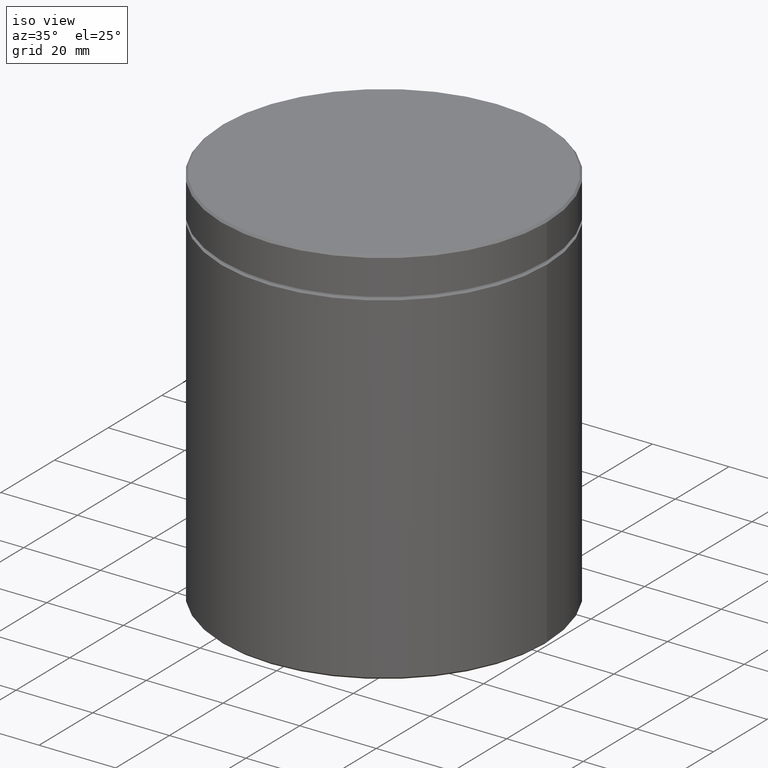
[diagram: clean part render]
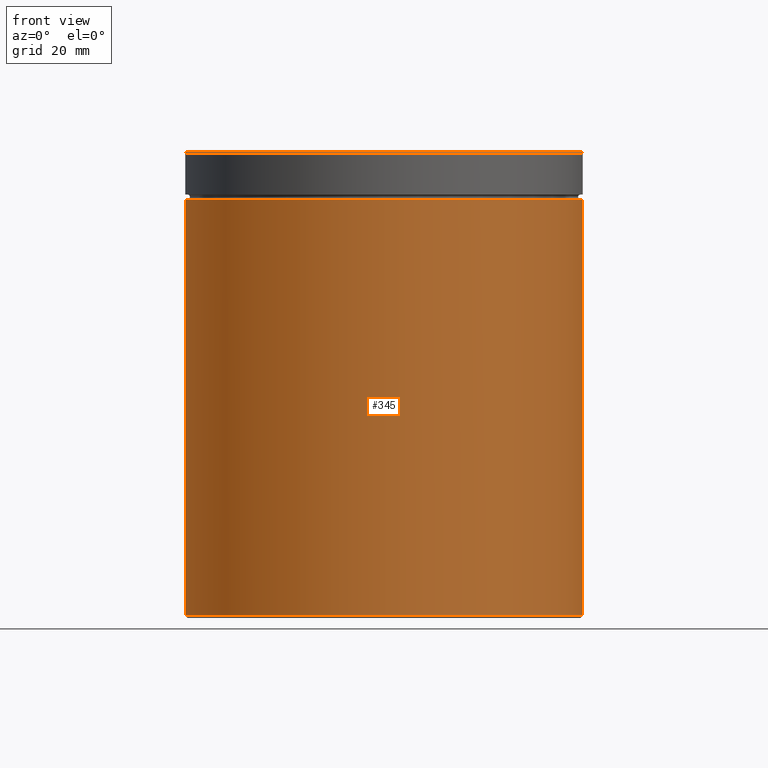
[diagram: tour spotlight — one face highlighted and labeled with its STEP entity id]
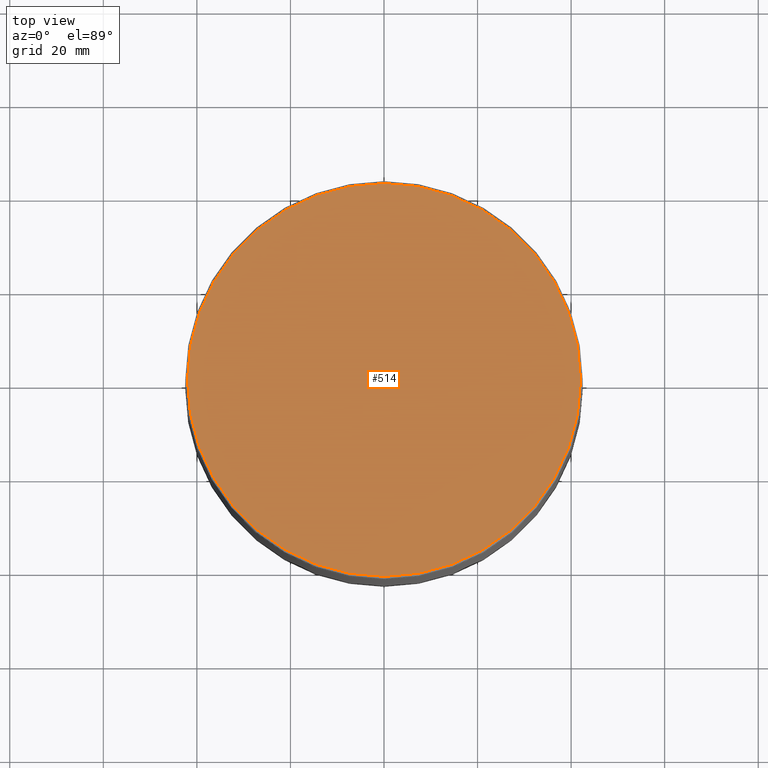
[diagram: tour spotlight — one face highlighted and labeled with its STEP entity id]
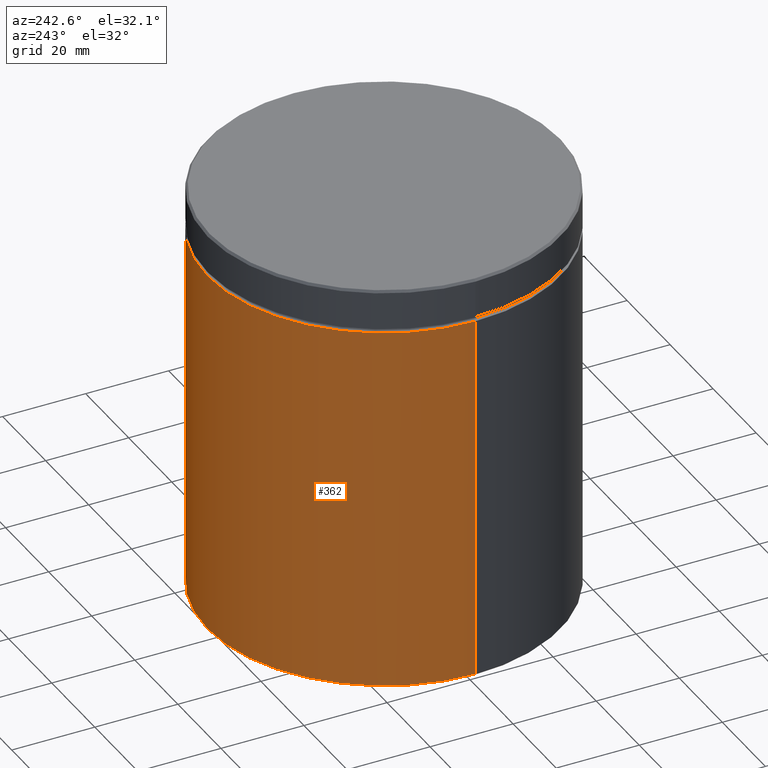
[diagram: tour spotlight — one face highlighted and labeled with its STEP entity id]
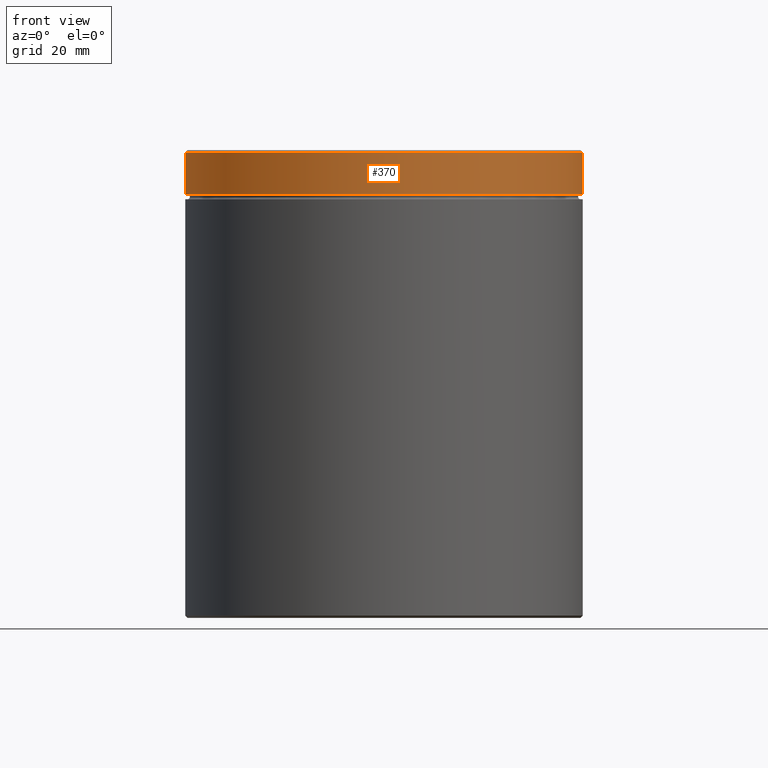
[diagram: tour spotlight — one face highlighted and labeled with its STEP entity id]
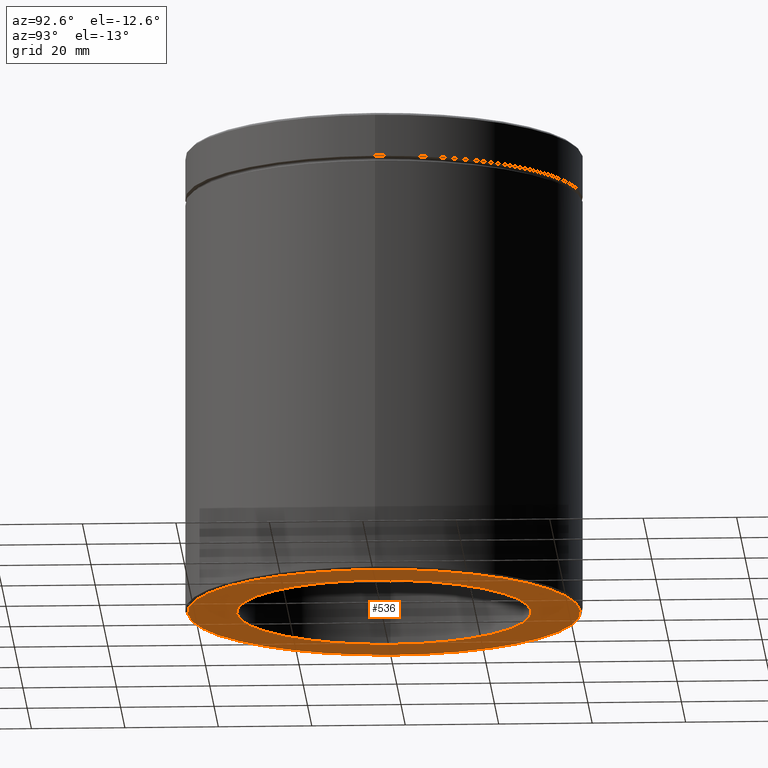
[diagram: tour spotlight — one face highlighted and labeled with its STEP entity id]
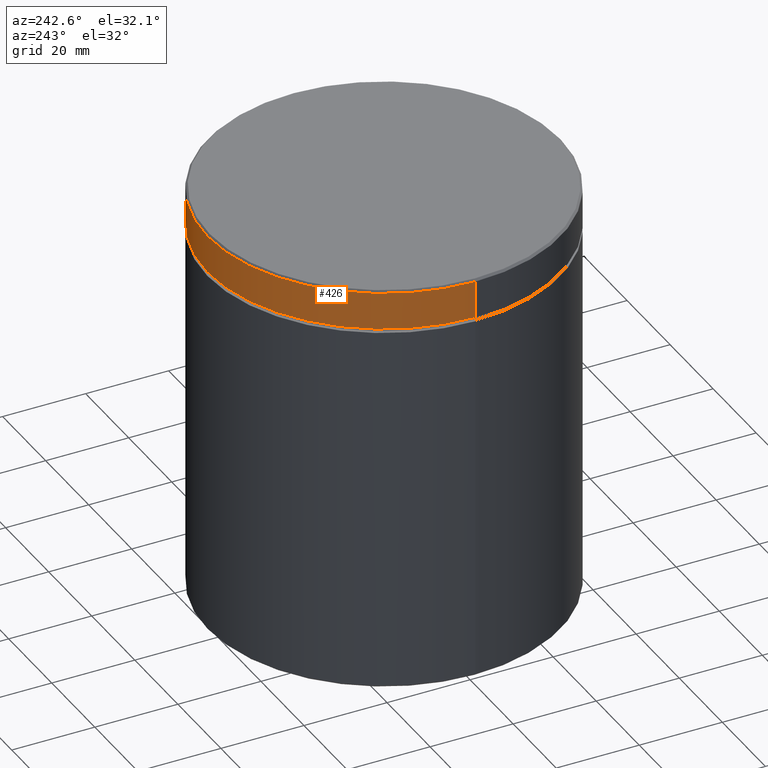
[diagram: tour spotlight — one face highlighted and labeled with its STEP entity id]
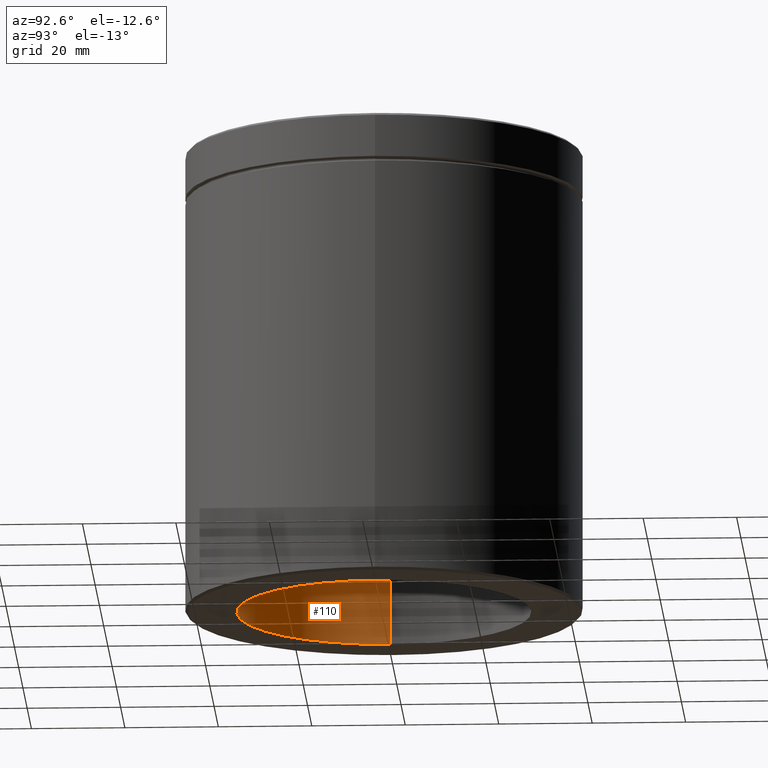
[diagram: tour spotlight — one face highlighted and labeled with its STEP entity id]
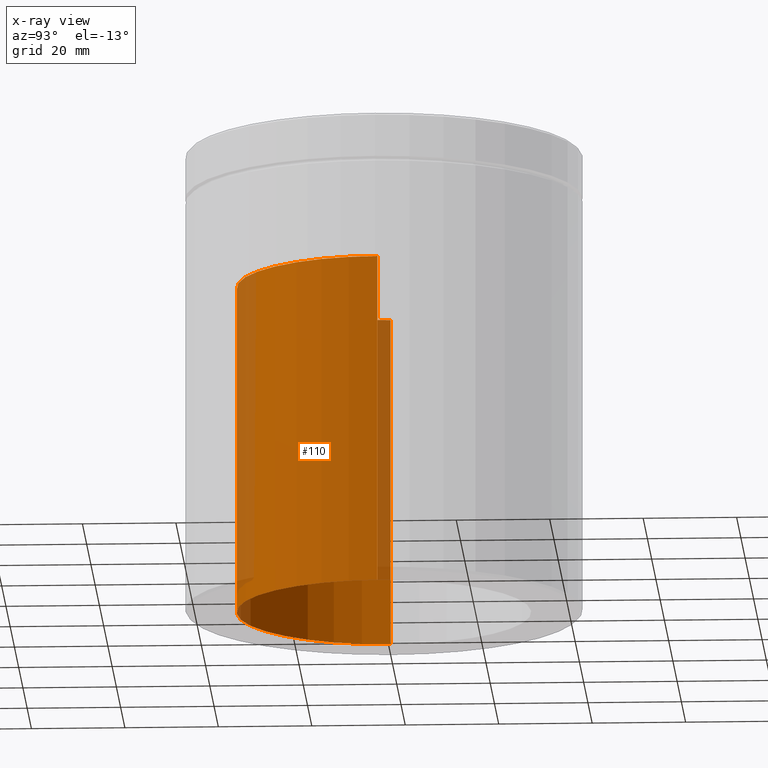
[diagram: x-ray of the same camera — body ghosted, this tour face saturated]
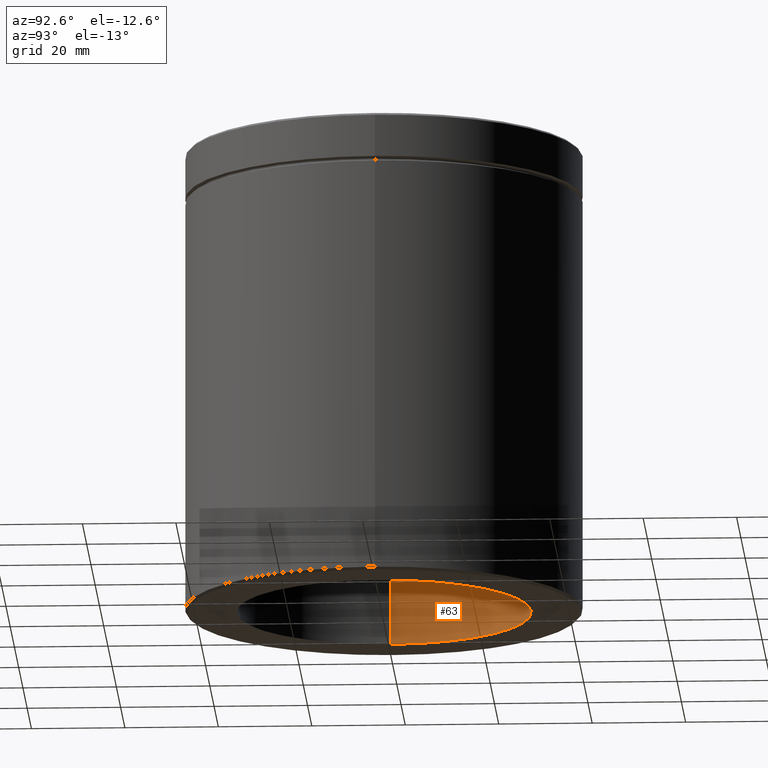
[diagram: tour spotlight — one face highlighted and labeled with its STEP entity id]
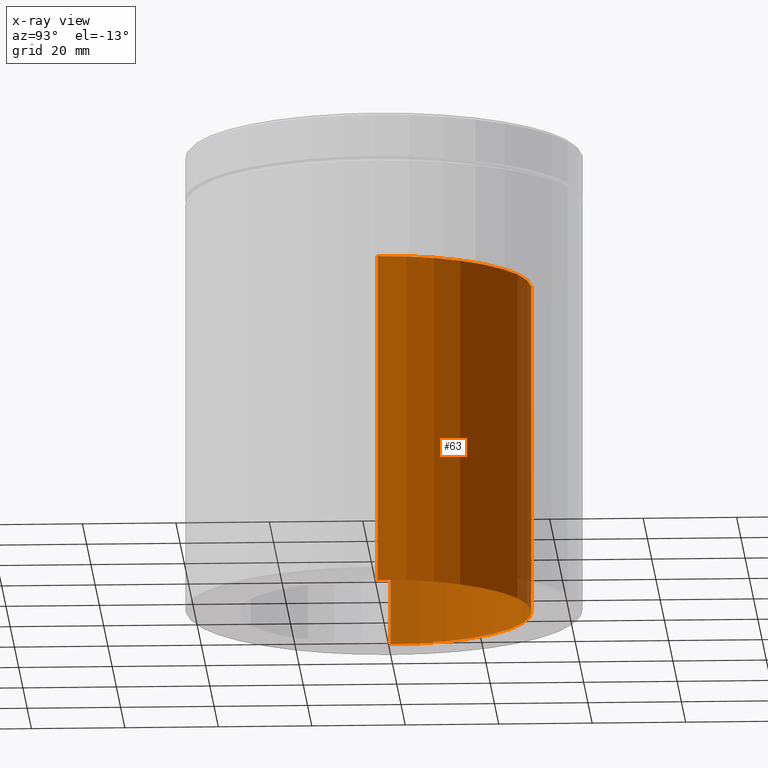
[diagram: x-ray of the same camera — body ghosted, this tour face saturated]
A machine part: a face-by-face anatomy tour. The part has 19 B-rep faces; the first image is the clean iso view, then the 8 largest visible faces are spotlighted one at a time (largest first), each with its STEP entity span.

Face 1 — front view, entity #345. In plain terms, the highlighted cylindrical surface (partial cylindrical patch) has radius 42.5 mm, axis along (-0, -0, 1).
Definition (entity closure, byte-faithful):
#19 = VERTEX_POINT ( 'NONE', #155 ) ;
#21 = DIRECTION ( 'NONE',  ( -0.000000000000000000, -0.000000000000000000, 1.000000000000000000 ) ) ;
#24 = ORIENTED_EDGE ( 'NONE', *, *, #42, .F. ) ;
#33 = AXIS2_PLACEMENT_3D ( 'NONE', #411, #21, #154 ) ;
#42 = EDGE_CURVE ( 'NONE', #532, #283, #319, .T. ) ;
#45 = DIRECTION ( 'NONE',  ( -0.000000000000000000, -0.000000000000000000, 1.000000000000000000 ) ) ;
#97 = EDGE_CURVE ( 'NONE', #19, #466, #497, .T. ) ;
#102 = CYLINDRICAL_SURFACE ( 'NONE', #33, 42.50000000000000000 ) ;
#115 = AXIS2_PLACEMENT_3D ( 'NONE', #558, #132, #424 ) ;
#131 = ORIENTED_EDGE ( 'NONE', *, *, #97, .T. ) ;
#132 = DIRECTION ( 'NONE',  ( -0.000000000000000000, -0.000000000000000000, 1.000000000000000000 ) ) ;
#141 = CARTESIAN_POINT ( 'NONE',  ( -42.50000000000000000, 5.204748896376250896E-15, 0.000000000000000000 ) ) ;
#148 = EDGE_CURVE ( 'NONE', #466, #283, #432, .T. ) ;
#154 = DIRECTION ( 'NONE',  ( 1.000000000000000000, 0.000000000000000000, 0.000000000000000000 ) ) ;
#155 = CARTESIAN_POINT ( 'NONE',  ( -42.50000000000000000, 5.204748896376250896E-15, -99.49999999999997158 ) ) ;
#213 = CARTESIAN_POINT ( 'NONE',  ( 42.50000000000000000, 0.000000000000000000, 0.000000000000000000 ) ) ;
#221 = DIRECTION ( 'NONE',  ( -0.000000000000000000, -0.000000000000000000, 1.000000000000000000 ) ) ;
#234 = CARTESIAN_POINT ( 'NONE',  ( -42.50000000000000000, 5.204748896376250896E-15, -10.50000000000000000 ) ) ;
#241 = FACE_OUTER_BOUND ( 'NONE', #551, .T. ) ;
#259 = DIRECTION ( 'NONE',  ( 1.000000000000000000, 0.000000000000000000, 0.000000000000000000 ) ) ;
#283 = VERTEX_POINT ( 'NONE', #363 ) ;
#294 = VECTOR ( 'NONE', #446, 1000.000000000000000 ) ;
#311 = EDGE_CURVE ( 'NONE', #19, #532, #534, .T. ) ;
#319 = CIRCLE ( 'NONE', #361, 42.50000000000000000 ) ;
#342 = VECTOR ( 'NONE', #45, 1000.000000000000000 ) ;
#345 = ADVANCED_FACE ( 'NONE', ( #241 ), #102, .T. ) ;
#361 = AXIS2_PLACEMENT_3D ( 'NONE', #472, #221, #259 ) ;
#363 = CARTESIAN_POINT ( 'NONE',  ( 42.50000000000000000, 0.000000000000000000, -10.50000000000000000 ) ) ;
#411 = CARTESIAN_POINT ( 'NONE',  ( 0.000000000000000000, 0.000000000000000000, 0.000000000000000000 ) ) ;
#417 = ORIENTED_EDGE ( 'NONE', *, *, #311, .F. ) ;
#424 = DIRECTION ( 'NONE',  ( -1.000000000000000000, 0.000000000000000000, 0.000000000000000000 ) ) ;
#432 = LINE ( 'NONE', #213, #342 ) ;
#446 = DIRECTION ( 'NONE',  ( -0.000000000000000000, -0.000000000000000000, 1.000000000000000000 ) ) ;
#464 = ORIENTED_EDGE ( 'NONE', *, *, #148, .T. ) ;
#466 = VERTEX_POINT ( 'NONE', #523 ) ;
#472 = CARTESIAN_POINT ( 'NONE',  ( 0.000000000000000000, 0.000000000000000000, -10.50000000000000000 ) ) ;
#497 = CIRCLE ( 'NONE', #115, 42.50000000000000000 ) ;
#523 = CARTESIAN_POINT ( 'NONE',  ( 42.50000000000000000, 0.000000000000000000, -99.49999999999997158 ) ) ;
#532 = VERTEX_POINT ( 'NONE', #234 ) ;
#534 = LINE ( 'NONE', #141, #294 ) ;
#551 = EDGE_LOOP ( 'NONE', ( #417, #131, #464, #24 ) ) ;
#558 = CARTESIAN_POINT ( 'NONE',  ( 0.000000000000000000, 0.000000000000000000, -99.49999999999997158 ) ) ;

Face 2 — top view, entity #514. In plain terms, the highlighted planar face has unit normal (0, -0, 1).
Definition (entity closure, byte-faithful):
#56 = DIRECTION ( 'NONE',  ( 0.000000000000000000, -0.000000000000000000, 1.000000000000000000 ) ) ;
#70 = AXIS2_PLACEMENT_3D ( 'NONE', #114, #346, #75 ) ;
#75 = DIRECTION ( 'NONE',  ( 1.000000000000000000, 0.000000000000000000, 0.000000000000000000 ) ) ;
#90 = DIRECTION ( 'NONE',  ( 1.000000000000000000, 0.000000000000000000, 0.000000000000000000 ) ) ;
#103 = CIRCLE ( 'NONE', #70, 41.99999999999999289 ) ;
#109 = DIRECTION ( 'NONE',  ( 1.000000000000000000, 0.000000000000000000, 0.000000000000000000 ) ) ;
#114 = CARTESIAN_POINT ( 'NONE',  ( 0.000000000000000000, 0.000000000000000000, 0.000000000000000000 ) ) ;
#116 = VERTEX_POINT ( 'NONE', #391 ) ;
#276 = ORIENTED_EDGE ( 'NONE', *, *, #359, .T. ) ;
#281 = FACE_OUTER_BOUND ( 'NONE', #488, .T. ) ;
#315 = PLANE ( 'NONE',  #343 ) ;
#316 = VERTEX_POINT ( 'NONE', #326 ) ;
#326 = CARTESIAN_POINT ( 'NONE',  ( -41.99999999999999289, 0.000000000000000000, 0.000000000000000000 ) ) ;
#333 = CARTESIAN_POINT ( 'NONE',  ( 0.000000000000000000, 0.000000000000000000, 0.000000000000000000 ) ) ;
#343 = AXIS2_PLACEMENT_3D ( 'NONE', #484, #56, #90 ) ;
#346 = DIRECTION ( 'NONE',  ( -0.000000000000000000, -0.000000000000000000, 1.000000000000000000 ) ) ;
#347 = ORIENTED_EDGE ( 'NONE', *, *, #503, .T. ) ;
#359 = EDGE_CURVE ( 'NONE', #116, #316, #527, .T. ) ;
#391 = CARTESIAN_POINT ( 'NONE',  ( 41.99999999999999289, 5.174132726397566320E-15, 0.000000000000000000 ) ) ;
#412 = AXIS2_PLACEMENT_3D ( 'NONE', #333, #501, #109 ) ;
#484 = CARTESIAN_POINT ( 'NONE',  ( 0.000000000000000000, 0.000000000000000000, 0.000000000000000000 ) ) ;
#488 = EDGE_LOOP ( 'NONE', ( #347, #276 ) ) ;
#501 = DIRECTION ( 'NONE',  ( -0.000000000000000000, -0.000000000000000000, 1.000000000000000000 ) ) ;
#503 = EDGE_CURVE ( 'NONE', #316, #116, #103, .T. ) ;
#514 = ADVANCED_FACE ( 'NONE', ( #281 ), #315, .T. ) ;
#527 = CIRCLE ( 'NONE', #412, 41.99999999999999289 ) ;

Face 3 — auxiliary view, entity #362. In plain terms, the highlighted cylindrical surface (partial cylindrical patch) has radius 42.5 mm, axis along (-0, -0, 1).
Definition (entity closure, byte-faithful):
#2 = AXIS2_PLACEMENT_3D ( 'NONE', #247, #305, #340 ) ;
#19 = VERTEX_POINT ( 'NONE', #155 ) ;
#38 = DIRECTION ( 'NONE',  ( 1.000000000000000000, 0.000000000000000000, 0.000000000000000000 ) ) ;
#40 = ORIENTED_EDGE ( 'NONE', *, *, #83, .F. ) ;
#45 = DIRECTION ( 'NONE',  ( -0.000000000000000000, -0.000000000000000000, 1.000000000000000000 ) ) ;
#62 = ORIENTED_EDGE ( 'NONE', *, *, #148, .F. ) ;
#67 = CYLINDRICAL_SURFACE ( 'NONE', #2, 42.50000000000000000 ) ;
#83 = EDGE_CURVE ( 'NONE', #283, #532, #352, .T. ) ;
#141 = CARTESIAN_POINT ( 'NONE',  ( -42.50000000000000000, 5.204748896376250896E-15, 0.000000000000000000 ) ) ;
#148 = EDGE_CURVE ( 'NONE', #466, #283, #432, .T. ) ;
#155 = CARTESIAN_POINT ( 'NONE',  ( -42.50000000000000000, 5.204748896376250896E-15, -99.49999999999997158 ) ) ;
#213 = CARTESIAN_POINT ( 'NONE',  ( 42.50000000000000000, 0.000000000000000000, 0.000000000000000000 ) ) ;
#234 = CARTESIAN_POINT ( 'NONE',  ( -42.50000000000000000, 5.204748896376250896E-15, -10.50000000000000000 ) ) ;
#239 = ORIENTED_EDGE ( 'NONE', *, *, #311, .T. ) ;
#247 = CARTESIAN_POINT ( 'NONE',  ( 0.000000000000000000, 0.000000000000000000, 0.000000000000000000 ) ) ;
#265 = DIRECTION ( 'NONE',  ( -0.000000000000000000, -0.000000000000000000, 1.000000000000000000 ) ) ;
#283 = VERTEX_POINT ( 'NONE', #363 ) ;
#292 = FACE_OUTER_BOUND ( 'NONE', #302, .T. ) ;
#294 = VECTOR ( 'NONE', #446, 1000.000000000000000 ) ;
#302 = EDGE_LOOP ( 'NONE', ( #327, #239, #40, #62 ) ) ;
#305 = DIRECTION ( 'NONE',  ( -0.000000000000000000, -0.000000000000000000, 1.000000000000000000 ) ) ;
#311 = EDGE_CURVE ( 'NONE', #19, #532, #534, .T. ) ;
#327 = ORIENTED_EDGE ( 'NONE', *, *, #375, .T. ) ;
#339 = DIRECTION ( 'NONE',  ( -1.000000000000000000, 0.000000000000000000, 0.000000000000000000 ) ) ;
#340 = DIRECTION ( 'NONE',  ( 1.000000000000000000, 0.000000000000000000, 0.000000000000000000 ) ) ;
#342 = VECTOR ( 'NONE', #45, 1000.000000000000000 ) ;
#352 = CIRCLE ( 'NONE', #515, 42.50000000000000000 ) ;
#357 = AXIS2_PLACEMENT_3D ( 'NONE', #554, #390, #339 ) ;
#362 = ADVANCED_FACE ( 'NONE', ( #292 ), #67, .T. ) ;
#363 = CARTESIAN_POINT ( 'NONE',  ( 42.50000000000000000, 0.000000000000000000, -10.50000000000000000 ) ) ;
#375 = EDGE_CURVE ( 'NONE', #466, #19, #492, .T. ) ;
#383 = CARTESIAN_POINT ( 'NONE',  ( 0.000000000000000000, 0.000000000000000000, -10.50000000000000000 ) ) ;
#390 = DIRECTION ( 'NONE',  ( -0.000000000000000000, -0.000000000000000000, 1.000000000000000000 ) ) ;
#432 = LINE ( 'NONE', #213, #342 ) ;
#446 = DIRECTION ( 'NONE',  ( -0.000000000000000000, -0.000000000000000000, 1.000000000000000000 ) ) ;
#466 = VERTEX_POINT ( 'NONE', #523 ) ;
#492 = CIRCLE ( 'NONE', #357, 42.50000000000000000 ) ;
#515 = AXIS2_PLACEMENT_3D ( 'NONE', #383, #265, #38 ) ;
#523 = CARTESIAN_POINT ( 'NONE',  ( 42.50000000000000000, 0.000000000000000000, -99.49999999999997158 ) ) ;
#532 = VERTEX_POINT ( 'NONE', #234 ) ;
#534 = LINE ( 'NONE', #141, #294 ) ;
#554 = CARTESIAN_POINT ( 'NONE',  ( 0.000000000000000000, 0.000000000000000000, -99.49999999999997158 ) ) ;

Face 4 — front view, entity #370. In plain terms, the highlighted cylindrical surface (partial cylindrical patch) has radius 42.5 mm, axis along (-0, -0, 1).
Definition (entity closure, byte-faithful):
#13 = EDGE_CURVE ( 'NONE', #505, #20, #306, .T. ) ;
#20 = VERTEX_POINT ( 'NONE', #562 ) ;
#43 = VECTOR ( 'NONE', #406, 1000.000000000000000 ) ;
#47 = CARTESIAN_POINT ( 'NONE',  ( 0.000000000000000000, 0.000000000000000000, -0.5000000000000004441 ) ) ;
#51 = DIRECTION ( 'NONE',  ( -0.000000000000000000, -0.000000000000000000, 1.000000000000000000 ) ) ;
#65 = CARTESIAN_POINT ( 'NONE',  ( 0.000000000000000000, 0.000000000000000000, -9.500000000000000000 ) ) ;
#101 = DIRECTION ( 'NONE',  ( 1.000000000000000000, 0.000000000000000000, 0.000000000000000000 ) ) ;
#128 = AXIS2_PLACEMENT_3D ( 'NONE', #47, #451, #101 ) ;
#142 = LINE ( 'NONE', #438, #184 ) ;
#150 = EDGE_LOOP ( 'NONE', ( #548, #331, #452, #295 ) ) ;
#156 = EDGE_CURVE ( 'NONE', #20, #368, #310, .T. ) ;
#165 = DIRECTION ( 'NONE',  ( -0.000000000000000000, -0.000000000000000000, 1.000000000000000000 ) ) ;
#166 = CARTESIAN_POINT ( 'NONE',  ( -42.50000000000000000, 5.204748896376250896E-15, -9.500000000000000000 ) ) ;
#172 = CARTESIAN_POINT ( 'NONE',  ( -42.50000000000000000, 5.204748896376250896E-15, -0.5000000000000004441 ) ) ;
#178 = EDGE_CURVE ( 'NONE', #368, #490, #378, .T. ) ;
#184 = VECTOR ( 'NONE', #220, 1000.000000000000000 ) ;
#208 = CARTESIAN_POINT ( 'NONE',  ( 42.50000000000000000, 0.000000000000000000, -0.5000000000000004441 ) ) ;
#211 = CYLINDRICAL_SURFACE ( 'NONE', #507, 42.50000000000000000 ) ;
#220 = DIRECTION ( 'NONE',  ( -0.000000000000000000, -0.000000000000000000, 1.000000000000000000 ) ) ;
#295 = ORIENTED_EDGE ( 'NONE', *, *, #178, .T. ) ;
#306 = CIRCLE ( 'NONE', #410, 42.50000000000000000 ) ;
#310 = LINE ( 'NONE', #482, #43 ) ;
#331 = ORIENTED_EDGE ( 'NONE', *, *, #13, .T. ) ;
#368 = VERTEX_POINT ( 'NONE', #208 ) ;
#370 = ADVANCED_FACE ( 'NONE', ( #557 ), #211, .T. ) ;
#378 = CIRCLE ( 'NONE', #128, 42.50000000000000000 ) ;
#406 = DIRECTION ( 'NONE',  ( -0.000000000000000000, -0.000000000000000000, 1.000000000000000000 ) ) ;
#410 = AXIS2_PLACEMENT_3D ( 'NONE', #65, #165, #549 ) ;
#438 = CARTESIAN_POINT ( 'NONE',  ( -42.50000000000000000, 5.204748896376250896E-15, 0.000000000000000000 ) ) ;
#451 = DIRECTION ( 'NONE',  ( 0.000000000000000000, 0.000000000000000000, -1.000000000000000000 ) ) ;
#452 = ORIENTED_EDGE ( 'NONE', *, *, #156, .T. ) ;
#458 = DIRECTION ( 'NONE',  ( 1.000000000000000000, 0.000000000000000000, 0.000000000000000000 ) ) ;
#475 = CARTESIAN_POINT ( 'NONE',  ( 0.000000000000000000, 0.000000000000000000, 0.000000000000000000 ) ) ;
#482 = CARTESIAN_POINT ( 'NONE',  ( 42.50000000000000000, 0.000000000000000000, 0.000000000000000000 ) ) ;
#490 = VERTEX_POINT ( 'NONE', #172 ) ;
#505 = VERTEX_POINT ( 'NONE', #166 ) ;
#507 = AXIS2_PLACEMENT_3D ( 'NONE', #475, #51, #458 ) ;
#548 = ORIENTED_EDGE ( 'NONE', *, *, #550, .F. ) ;
#549 = DIRECTION ( 'NONE',  ( 1.000000000000000000, 0.000000000000000000, 0.000000000000000000 ) ) ;
#550 = EDGE_CURVE ( 'NONE', #505, #490, #142, .T. ) ;
#557 = FACE_OUTER_BOUND ( 'NONE', #150, .T. ) ;
#562 = CARTESIAN_POINT ( 'NONE',  ( 42.50000000000000000, 0.000000000000000000, -9.500000000000000000 ) ) ;

Face 5 — auxiliary view, entity #536. In plain terms, the highlighted planar face has unit normal (0, 0, -1).
Definition (entity closure, byte-faithful):
#6 = ORIENTED_EDGE ( 'NONE', *, *, #559, .T. ) ;
#7 = DIRECTION ( 'NONE',  ( 0.000000000000000000, 0.000000000000000000, -1.000000000000000000 ) ) ;
#11 = FACE_BOUND ( 'NONE', #415, .T. ) ;
#15 = AXIS2_PLACEMENT_3D ( 'NONE', #393, #187, #226 ) ;
#41 = CARTESIAN_POINT ( 'NONE',  ( -31.50000000000000000, 0.000000000000000000, -100.0000000000000000 ) ) ;
#50 = AXIS2_PLACEMENT_3D ( 'NONE', #487, #99, #138 ) ;
#64 = DIRECTION ( 'NONE',  ( -1.000000000000000000, 0.000000000000000000, 0.000000000000000000 ) ) ;
#69 = VERTEX_POINT ( 'NONE', #41 ) ;
#81 = ORIENTED_EDGE ( 'NONE', *, *, #280, .T. ) ;
#99 = DIRECTION ( 'NONE',  ( 0.000000000000000000, 0.000000000000000000, -1.000000000000000000 ) ) ;
#125 = EDGE_CURVE ( 'NONE', #205, #69, #386, .T. ) ;
#133 = CARTESIAN_POINT ( 'NONE',  ( 0.000000000000000000, 42.50000000000000000, -100.0000000000000000 ) ) ;
#134 = CARTESIAN_POINT ( 'NONE',  ( -41.99999999999996447, 5.174132726397564743E-15, -100.0000000000000000 ) ) ;
#138 = DIRECTION ( 'NONE',  ( -1.000000000000000000, 0.000000000000000000, 0.000000000000000000 ) ) ;
#187 = DIRECTION ( 'NONE',  ( 0.000000000000000000, 0.000000000000000000, -1.000000000000000000 ) ) ;
#196 = VERTEX_POINT ( 'NONE', #134 ) ;
#198 = AXIS2_PLACEMENT_3D ( 'NONE', #459, #380, #64 ) ;
#205 = VERTEX_POINT ( 'NONE', #441 ) ;
#224 = CIRCLE ( 'NONE', #50, 41.99999999999996447 ) ;
#226 = DIRECTION ( 'NONE',  ( -1.000000000000000000, 0.000000000000000000, 0.000000000000000000 ) ) ;
#255 = CIRCLE ( 'NONE', #15, 41.99999999999996447 ) ;
#280 = EDGE_CURVE ( 'NONE', #196, #504, #224, .T. ) ;
#307 = DIRECTION ( 'NONE',  ( 0.000000000000000000, 0.000000000000000000, -1.000000000000000000 ) ) ;
#341 = EDGE_CURVE ( 'NONE', #69, #205, #539, .T. ) ;
#348 = CARTESIAN_POINT ( 'NONE',  ( 0.000000000000000000, 0.000000000000000000, -100.0000000000000000 ) ) ;
#366 = PLANE ( 'NONE',  #463 ) ;
#380 = DIRECTION ( 'NONE',  ( 0.000000000000000000, 0.000000000000000000, -1.000000000000000000 ) ) ;
#386 = CIRCLE ( 'NONE', #422, 31.50000000000000000 ) ;
#393 = CARTESIAN_POINT ( 'NONE',  ( 0.000000000000000000, 0.000000000000000000, -100.0000000000000000 ) ) ;
#402 = FACE_OUTER_BOUND ( 'NONE', #547, .T. ) ;
#415 = EDGE_LOOP ( 'NONE', ( #425, #500 ) ) ;
#422 = AXIS2_PLACEMENT_3D ( 'NONE', #348, #307, #477 ) ;
#425 = ORIENTED_EDGE ( 'NONE', *, *, #341, .F. ) ;
#441 = CARTESIAN_POINT ( 'NONE',  ( 31.50000000000000000, 3.857637417314162689E-15, -100.0000000000000000 ) ) ;
#459 = CARTESIAN_POINT ( 'NONE',  ( 0.000000000000000000, 0.000000000000000000, -100.0000000000000000 ) ) ;
#463 = AXIS2_PLACEMENT_3D ( 'NONE', #133, #7, #540 ) ;
#477 = DIRECTION ( 'NONE',  ( -1.000000000000000000, 0.000000000000000000, 0.000000000000000000 ) ) ;
#487 = CARTESIAN_POINT ( 'NONE',  ( 0.000000000000000000, 0.000000000000000000, -100.0000000000000000 ) ) ;
#500 = ORIENTED_EDGE ( 'NONE', *, *, #125, .F. ) ;
#504 = VERTEX_POINT ( 'NONE', #556 ) ;
#536 = ADVANCED_FACE ( 'NONE', ( #402, #11 ), #366, .T. ) ;
#539 = CIRCLE ( 'NONE', #198, 31.50000000000000000 ) ;
#540 = DIRECTION ( 'NONE',  ( -1.000000000000000000, 0.000000000000000000, -0.000000000000000000 ) ) ;
#547 = EDGE_LOOP ( 'NONE', ( #6, #81 ) ) ;
#556 = CARTESIAN_POINT ( 'NONE',  ( 41.99999999999996447, 0.000000000000000000, -100.0000000000000000 ) ) ;
#559 = EDGE_CURVE ( 'NONE', #504, #196, #255, .T. ) ;

Face 6 — auxiliary view, entity #426. In plain terms, the highlighted cylindrical surface (partial cylindrical patch) has radius 42.5 mm, axis along (-0, -0, 1).
Definition (entity closure, byte-faithful):
#10 = EDGE_CURVE ( 'NONE', #490, #368, #404, .T. ) ;
#20 = VERTEX_POINT ( 'NONE', #562 ) ;
#25 = ORIENTED_EDGE ( 'NONE', *, *, #10, .T. ) ;
#30 = FACE_OUTER_BOUND ( 'NONE', #299, .T. ) ;
#43 = VECTOR ( 'NONE', #406, 1000.000000000000000 ) ;
#112 = CIRCLE ( 'NONE', #454, 42.50000000000000000 ) ;
#142 = LINE ( 'NONE', #438, #184 ) ;
#156 = EDGE_CURVE ( 'NONE', #20, #368, #310, .T. ) ;
#157 = AXIS2_PLACEMENT_3D ( 'NONE', #161, #460, #297 ) ;
#161 = CARTESIAN_POINT ( 'NONE',  ( 0.000000000000000000, 0.000000000000000000, -0.5000000000000004441 ) ) ;
#166 = CARTESIAN_POINT ( 'NONE',  ( -42.50000000000000000, 5.204748896376250896E-15, -9.500000000000000000 ) ) ;
#167 = DIRECTION ( 'NONE',  ( 1.000000000000000000, 0.000000000000000000, 0.000000000000000000 ) ) ;
#172 = CARTESIAN_POINT ( 'NONE',  ( -42.50000000000000000, 5.204748896376250896E-15, -0.5000000000000004441 ) ) ;
#180 = ORIENTED_EDGE ( 'NONE', *, *, #467, .T. ) ;
#184 = VECTOR ( 'NONE', #220, 1000.000000000000000 ) ;
#208 = CARTESIAN_POINT ( 'NONE',  ( 42.50000000000000000, 0.000000000000000000, -0.5000000000000004441 ) ) ;
#220 = DIRECTION ( 'NONE',  ( -0.000000000000000000, -0.000000000000000000, 1.000000000000000000 ) ) ;
#236 = AXIS2_PLACEMENT_3D ( 'NONE', #563, #517, #167 ) ;
#260 = CARTESIAN_POINT ( 'NONE',  ( 0.000000000000000000, 0.000000000000000000, -9.500000000000000000 ) ) ;
#268 = ORIENTED_EDGE ( 'NONE', *, *, #156, .F. ) ;
#286 = ORIENTED_EDGE ( 'NONE', *, *, #550, .T. ) ;
#297 = DIRECTION ( 'NONE',  ( 1.000000000000000000, 0.000000000000000000, 0.000000000000000000 ) ) ;
#299 = EDGE_LOOP ( 'NONE', ( #180, #286, #25, #268 ) ) ;
#310 = LINE ( 'NONE', #482, #43 ) ;
#368 = VERTEX_POINT ( 'NONE', #208 ) ;
#382 = CYLINDRICAL_SURFACE ( 'NONE', #236, 42.50000000000000000 ) ;
#385 = DIRECTION ( 'NONE',  ( -0.000000000000000000, -0.000000000000000000, 1.000000000000000000 ) ) ;
#404 = CIRCLE ( 'NONE', #157, 42.50000000000000000 ) ;
#406 = DIRECTION ( 'NONE',  ( -0.000000000000000000, -0.000000000000000000, 1.000000000000000000 ) ) ;
#426 = ADVANCED_FACE ( 'NONE', ( #30 ), #382, .T. ) ;
#438 = CARTESIAN_POINT ( 'NONE',  ( -42.50000000000000000, 5.204748896376250896E-15, 0.000000000000000000 ) ) ;
#454 = AXIS2_PLACEMENT_3D ( 'NONE', #260, #385, #479 ) ;
#460 = DIRECTION ( 'NONE',  ( 0.000000000000000000, 0.000000000000000000, -1.000000000000000000 ) ) ;
#467 = EDGE_CURVE ( 'NONE', #20, #505, #112, .T. ) ;
#479 = DIRECTION ( 'NONE',  ( 1.000000000000000000, 0.000000000000000000, 0.000000000000000000 ) ) ;
#482 = CARTESIAN_POINT ( 'NONE',  ( 42.50000000000000000, 0.000000000000000000, 0.000000000000000000 ) ) ;
#490 = VERTEX_POINT ( 'NONE', #172 ) ;
#505 = VERTEX_POINT ( 'NONE', #166 ) ;
#517 = DIRECTION ( 'NONE',  ( -0.000000000000000000, -0.000000000000000000, 1.000000000000000000 ) ) ;
#550 = EDGE_CURVE ( 'NONE', #505, #490, #142, .T. ) ;
#562 = CARTESIAN_POINT ( 'NONE',  ( 42.50000000000000000, 0.000000000000000000, -9.500000000000000000 ) ) ;
#563 = CARTESIAN_POINT ( 'NONE',  ( 0.000000000000000000, 0.000000000000000000, 0.000000000000000000 ) ) ;

Face 7 — auxiliary view, entity #110. An x-ray twin of the same camera follows (body ghosted, this face saturated) — the face is partly hidden behind the body. In plain terms, the highlighted cylindrical surface (partial cylindrical patch) has radius 31.5 mm, axis along (-0, -0, -1).
Definition (entity closure, byte-faithful):
#36 = CARTESIAN_POINT ( 'NONE',  ( -31.50000000000000000, 0.000000000000000000, -29.00000000000001066 ) ) ;
#41 = CARTESIAN_POINT ( 'NONE',  ( -31.50000000000000000, 0.000000000000000000, -100.0000000000000000 ) ) ;
#44 = VECTOR ( 'NONE', #512, 1000.000000000000000 ) ;
#68 = AXIS2_PLACEMENT_3D ( 'NONE', #217, #303, #474 ) ;
#69 = VERTEX_POINT ( 'NONE', #41 ) ;
#110 = ADVANCED_FACE ( 'NONE', ( #436 ), #126, .F. ) ;
#125 = EDGE_CURVE ( 'NONE', #205, #69, #386, .T. ) ;
#126 = CYLINDRICAL_SURFACE ( 'NONE', #68, 31.50000000000000000 ) ;
#151 = CIRCLE ( 'NONE', #470, 31.50000000000000000 ) ;
#177 = LINE ( 'NONE', #36, #44 ) ;
#199 = ORIENTED_EDGE ( 'NONE', *, *, #334, .T. ) ;
#200 = EDGE_LOOP ( 'NONE', ( #526, #199, #522, #483 ) ) ;
#201 = CARTESIAN_POINT ( 'NONE',  ( 31.50000000000000000, 3.857637417314162689E-15, -29.00000000000001066 ) ) ;
#205 = VERTEX_POINT ( 'NONE', #441 ) ;
#217 = CARTESIAN_POINT ( 'NONE',  ( 0.000000000000000000, 0.000000000000000000, -29.00000000000001066 ) ) ;
#258 = EDGE_CURVE ( 'NONE', #290, #462, #151, .T. ) ;
#287 = LINE ( 'NONE', #201, #444 ) ;
#290 = VERTEX_POINT ( 'NONE', #489 ) ;
#303 = DIRECTION ( 'NONE',  ( -0.000000000000000000, -0.000000000000000000, -1.000000000000000000 ) ) ;
#307 = DIRECTION ( 'NONE',  ( 0.000000000000000000, 0.000000000000000000, -1.000000000000000000 ) ) ;
#334 = EDGE_CURVE ( 'NONE', #290, #205, #287, .T. ) ;
#348 = CARTESIAN_POINT ( 'NONE',  ( 0.000000000000000000, 0.000000000000000000, -100.0000000000000000 ) ) ;
#351 = CARTESIAN_POINT ( 'NONE',  ( -31.50000000000000000, 0.000000000000000000, -29.00000000000001066 ) ) ;
#367 = DIRECTION ( 'NONE',  ( 0.000000000000000000, 0.000000000000000000, -1.000000000000000000 ) ) ;
#386 = CIRCLE ( 'NONE', #422, 31.50000000000000000 ) ;
#420 = DIRECTION ( 'NONE',  ( -0.000000000000000000, -0.000000000000000000, -1.000000000000000000 ) ) ;
#422 = AXIS2_PLACEMENT_3D ( 'NONE', #348, #307, #477 ) ;
#433 = EDGE_CURVE ( 'NONE', #462, #69, #177, .T. ) ;
#436 = FACE_OUTER_BOUND ( 'NONE', #200, .T. ) ;
#441 = CARTESIAN_POINT ( 'NONE',  ( 31.50000000000000000, 3.857637417314162689E-15, -100.0000000000000000 ) ) ;
#444 = VECTOR ( 'NONE', #420, 1000.000000000000000 ) ;
#448 = CARTESIAN_POINT ( 'NONE',  ( 0.000000000000000000, 0.000000000000000000, -29.00000000000001066 ) ) ;
#462 = VERTEX_POINT ( 'NONE', #351 ) ;
#470 = AXIS2_PLACEMENT_3D ( 'NONE', #448, #367, #542 ) ;
#474 = DIRECTION ( 'NONE',  ( -1.000000000000000000, 0.000000000000000000, 0.000000000000000000 ) ) ;
#477 = DIRECTION ( 'NONE',  ( -1.000000000000000000, 0.000000000000000000, 0.000000000000000000 ) ) ;
#483 = ORIENTED_EDGE ( 'NONE', *, *, #433, .F. ) ;
#489 = CARTESIAN_POINT ( 'NONE',  ( 31.50000000000000000, 3.857637417314162689E-15, -29.00000000000001066 ) ) ;
#512 = DIRECTION ( 'NONE',  ( -0.000000000000000000, -0.000000000000000000, -1.000000000000000000 ) ) ;
#522 = ORIENTED_EDGE ( 'NONE', *, *, #125, .T. ) ;
#526 = ORIENTED_EDGE ( 'NONE', *, *, #258, .F. ) ;
#542 = DIRECTION ( 'NONE',  ( -1.000000000000000000, 0.000000000000000000, 0.000000000000000000 ) ) ;

Face 8 — auxiliary view, entity #63. An x-ray twin of the same camera follows (body ghosted, this face saturated) — the face is partly hidden behind the body. In plain terms, the highlighted cylindrical surface (partial cylindrical patch) has radius 31.5 mm, axis along (-0, -0, -1).
Definition (entity closure, byte-faithful):
#36 = CARTESIAN_POINT ( 'NONE',  ( -31.50000000000000000, 0.000000000000000000, -29.00000000000001066 ) ) ;
#41 = CARTESIAN_POINT ( 'NONE',  ( -31.50000000000000000, 0.000000000000000000, -100.0000000000000000 ) ) ;
#44 = VECTOR ( 'NONE', #512, 1000.000000000000000 ) ;
#63 = ADVANCED_FACE ( 'NONE', ( #388 ), #174, .F. ) ;
#64 = DIRECTION ( 'NONE',  ( -1.000000000000000000, 0.000000000000000000, 0.000000000000000000 ) ) ;
#69 = VERTEX_POINT ( 'NONE', #41 ) ;
#71 = ORIENTED_EDGE ( 'NONE', *, *, #136, .F. ) ;
#84 = DIRECTION ( 'NONE',  ( 0.000000000000000000, 0.000000000000000000, -1.000000000000000000 ) ) ;
#85 = CARTESIAN_POINT ( 'NONE',  ( 0.000000000000000000, 0.000000000000000000, -29.00000000000001066 ) ) ;
#129 = ORIENTED_EDGE ( 'NONE', *, *, #334, .F. ) ;
#136 = EDGE_CURVE ( 'NONE', #462, #290, #537, .T. ) ;
#159 = AXIS2_PLACEMENT_3D ( 'NONE', #85, #84, #262 ) ;
#174 = CYLINDRICAL_SURFACE ( 'NONE', #419, 31.50000000000000000 ) ;
#177 = LINE ( 'NONE', #36, #44 ) ;
#198 = AXIS2_PLACEMENT_3D ( 'NONE', #459, #380, #64 ) ;
#201 = CARTESIAN_POINT ( 'NONE',  ( 31.50000000000000000, 3.857637417314162689E-15, -29.00000000000001066 ) ) ;
#205 = VERTEX_POINT ( 'NONE', #441 ) ;
#262 = DIRECTION ( 'NONE',  ( -1.000000000000000000, 0.000000000000000000, 0.000000000000000000 ) ) ;
#287 = LINE ( 'NONE', #201, #444 ) ;
#288 = ORIENTED_EDGE ( 'NONE', *, *, #433, .T. ) ;
#290 = VERTEX_POINT ( 'NONE', #489 ) ;
#334 = EDGE_CURVE ( 'NONE', #290, #205, #287, .T. ) ;
#341 = EDGE_CURVE ( 'NONE', #69, #205, #539, .T. ) ;
#351 = CARTESIAN_POINT ( 'NONE',  ( -31.50000000000000000, 0.000000000000000000, -29.00000000000001066 ) ) ;
#380 = DIRECTION ( 'NONE',  ( 0.000000000000000000, 0.000000000000000000, -1.000000000000000000 ) ) ;
#388 = FACE_OUTER_BOUND ( 'NONE', #409, .T. ) ;
#409 = EDGE_LOOP ( 'NONE', ( #129, #71, #288, #498 ) ) ;
#419 = AXIS2_PLACEMENT_3D ( 'NONE', #528, #428, #564 ) ;
#420 = DIRECTION ( 'NONE',  ( -0.000000000000000000, -0.000000000000000000, -1.000000000000000000 ) ) ;
#428 = DIRECTION ( 'NONE',  ( -0.000000000000000000, -0.000000000000000000, -1.000000000000000000 ) ) ;
#433 = EDGE_CURVE ( 'NONE', #462, #69, #177, .T. ) ;
#441 = CARTESIAN_POINT ( 'NONE',  ( 31.50000000000000000, 3.857637417314162689E-15, -100.0000000000000000 ) ) ;
#444 = VECTOR ( 'NONE', #420, 1000.000000000000000 ) ;
#459 = CARTESIAN_POINT ( 'NONE',  ( 0.000000000000000000, 0.000000000000000000, -100.0000000000000000 ) ) ;
#462 = VERTEX_POINT ( 'NONE', #351 ) ;
#489 = CARTESIAN_POINT ( 'NONE',  ( 31.50000000000000000, 3.857637417314162689E-15, -29.00000000000001066 ) ) ;
#498 = ORIENTED_EDGE ( 'NONE', *, *, #341, .T. ) ;
#512 = DIRECTION ( 'NONE',  ( -0.000000000000000000, -0.000000000000000000, -1.000000000000000000 ) ) ;
#528 = CARTESIAN_POINT ( 'NONE',  ( 0.000000000000000000, 0.000000000000000000, -29.00000000000001066 ) ) ;
#537 = CIRCLE ( 'NONE', #159, 31.50000000000000000 ) ;
#539 = CIRCLE ( 'NONE', #198, 31.50000000000000000 ) ;
#564 = DIRECTION ( 'NONE',  ( -1.000000000000000000, 0.000000000000000000, 0.000000000000000000 ) ) ;